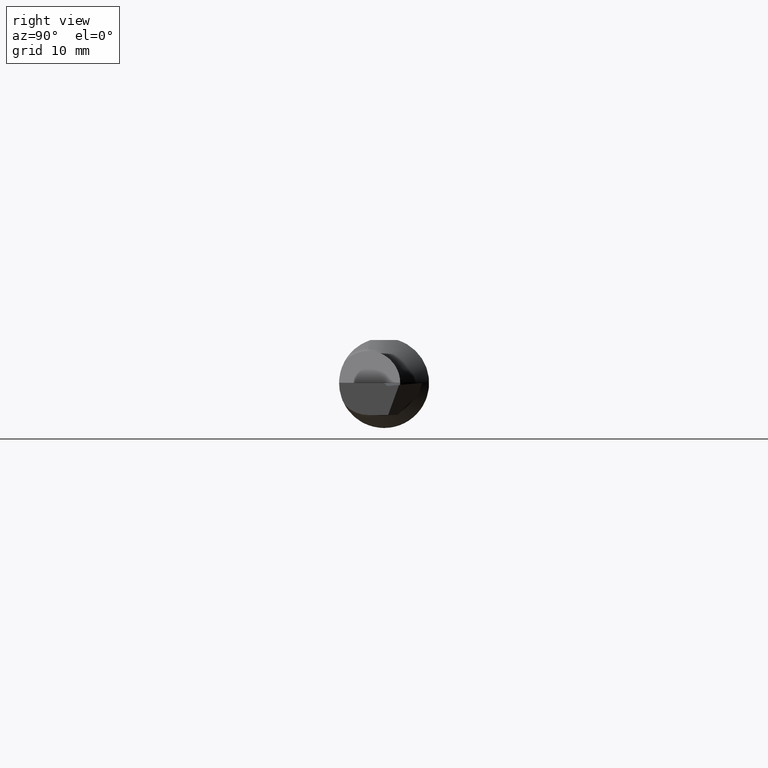
[diagram: clean part render]
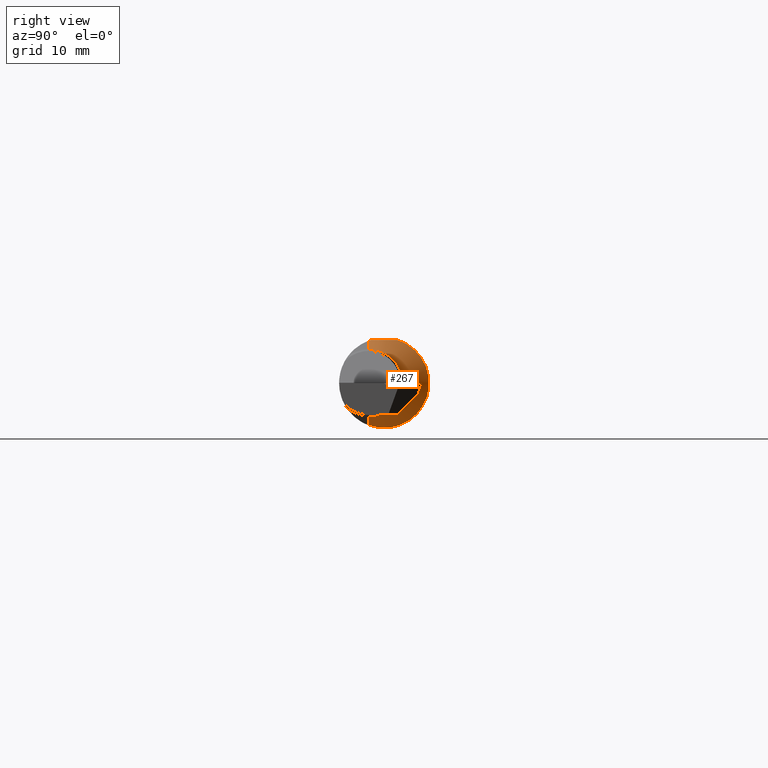
[diagram: same view with one face highlighted and labeled with its STEP entity id]
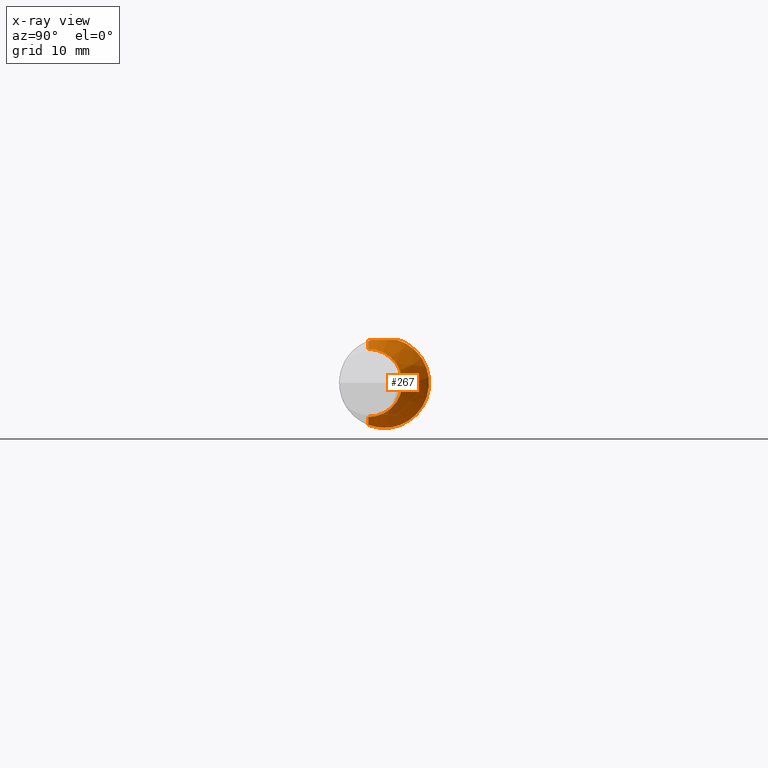
[diagram: x-ray of the same camera — body ghosted, the highlighted face saturated]
A machine part, right view. The second image highlights one B-rep face of the part: STEP entity #267.
The next image is the same camera in x-ray: the body ghosted, the highlighted face saturated — about 19% of this face is hidden behind the body in this view.
In plain terms, the highlighted conical surface has half-angle 45 deg.
Its self-contained STEP definition (entity closure, byte-faithful):
#8 = CARTESIAN_POINT ( 'NONE',  ( 1.616635871238674804, -0.04622120725381384521, 0.1490999999999999270 ) ) ;
#30 = CARTESIAN_POINT ( 'NONE',  ( 1.619947954481972374, -0.05509999999999988518, -0.1460520455180277233 ) ) ;
#31 = CARTESIAN_POINT ( 'NONE',  ( 1.616390666311418478, -0.04567079466777382996, -0.1496093336885842007 ) ) ;
#47 = CARTESIAN_POINT ( 'NONE',  ( 1.585731319860130828, 0.04622120725381386602, 0.1490999999999999270 ) ) ;
#54 = ORIENTED_EDGE ( 'NONE', *, *, #310, .T. ) ;
#80 = CARTESIAN_POINT ( 'NONE',  ( 1.611455283410027750, -0.01367641444778827133, 0.1490999999999999548 ) ) ;
#96 = CARTESIAN_POINT ( 'NONE',  ( 1.568136278873995426, 0.1065604417534539161, -0.1145449302933602004 ) ) ;
#111 = CARTESIAN_POINT ( 'NONE',  ( 1.572111493183075526, 0.09241859738491069176, 0.1262303666906479938 ) ) ;
#115 = CARTESIAN_POINT ( 'NONE',  ( 1.554825678371061004, 0.1560001080571326859, -0.01202898505658659724 ) ) ;
#153 = CARTESIAN_POINT ( 'NONE',  ( 1.593705498961929479, 0.03203370612900889591, 0.1490999999999999270 ) ) ;
#156 = CIRCLE ( 'NONE', #773, 0.1183223304703363982 ) ;
#159 = EDGE_CURVE ( 'NONE', #442, #481, #569, .T. ) ;
#167 = CARTESIAN_POINT ( 'NONE',  ( 1.609095431277676846, -0.005703213165482891658, 0.1490999999999999548 ) ) ;
#169 = CARTESIAN_POINT ( 'NONE',  ( 1.617743472878949706, -0.04922367465879138454, 0.1481692309309302347 ) ) ;
#172 = CARTESIAN_POINT ( 'NONE',  ( 1.575205725379794863, 0.08160962841902984211, -0.1334729144958974878 ) ) ;
#179 = CARTESIAN_POINT ( 'NONE',  ( 1.585731319860130828, 0.04622120725381386602, 0.1490999999999999270 ) ) ;
#183 = CARTESIAN_POINT ( 'NONE',  ( 1.554706639062241935, 0.1564576890087830963, -0.001432090562047943355 ) ) ;
#191 = EDGE_CURVE ( 'NONE', #1047, #624, #1037, .T. ) ;
#193 = CARTESIAN_POINT ( 'NONE',  ( 1.557949842719563716, 0.1441017141000177360, 0.06095261037131192994 ) ) ;
#220 = EDGE_CURVE ( 'NONE', #1030, #1047, #156, .T. ) ;
#224 = DIRECTION ( 'NONE',  ( 0.000000000000000000, 0.000000000000000000, 1.000000000000000000 ) ) ;
#226 = ORIENTED_EDGE ( 'NONE', *, *, #376, .F. ) ;
#230 = CARTESIAN_POINT ( 'NONE',  ( 1.585731319860130828, 0.04622120725381386602, 0.1490999999999999270 ) ) ;
#251 = CARTESIAN_POINT ( 'NONE',  ( 1.582717130590346910, 0.05608262143449923437, 0.1460429478963033156 ) ) ;
#257 = CARTESIAN_POINT ( 'NONE',  ( 1.556943772126054171, 0.1479197732258280551, 0.05098120130938367522 ) ) ;
#262 = CARTESIAN_POINT ( 'NONE',  ( 1.595770450437745458, 0.01419006742947588780, -0.1557821214568156365 ) ) ;
#264 = CARTESIAN_POINT ( 'NONE',  ( 1.647677669529663769, -0.05509999999999980885, -0.1183223304703363843 ) ) ;
#266 = FACE_OUTER_BOUND ( 'NONE', #972, .T. ) ;
#267 = ADVANCED_FACE ( 'NONE', ( #266 ), #703, .T. ) ;
#271 = DIRECTION ( 'NONE',  ( 0.000000000000000000, 0.000000000000000000, 1.000000000000000000 ) ) ;
#310 = EDGE_CURVE ( 'NONE', #624, #442, #795, .T. ) ;
#318 = DIRECTION ( 'NONE',  ( -0.7071067811865516806, 8.659560562354883554E-17, -0.7071067811865434649 ) ) ;
#326 = CARTESIAN_POINT ( 'NONE',  ( 1.454999999999998073, -0.05509999999999979498, -0.3109999999999998876 ) ) ;
#334 = CARTESIAN_POINT ( 'NONE',  ( 1.619947954481972374, -0.05510000000000016274, 0.1460520455180288335 ) ) ;
#347 = CARTESIAN_POINT ( 'NONE',  ( 1.556326481736836298, 0.1502618000434304546, -0.04359105745430103679 ) ) ;
#348 = ORIENTED_EDGE ( 'NONE', *, *, #159, .T. ) ;
#351 = CARTESIAN_POINT ( 'NONE',  ( 1.555491321236809110, 0.1534496953831912813, 0.03053740632296889773 ) ) ;
#376 = EDGE_CURVE ( 'NONE', #1030, #729, #609, .T. ) ;
#393 = B_SPLINE_CURVE_WITH_KNOTS ( 'NONE', 3,
 ( #8, #169, #492, #894 ),
 .UNSPECIFIED., .F., .F.,
 ( 4, 4 ),
 ( 7.061912593305936376E-07, 0.0002510725968033642396 ),
 .UNSPECIFIED. ) ;
#416 = ORIENTED_EDGE ( 'NONE', *, *, #993, .T. ) ;
#419 = CARTESIAN_POINT ( 'NONE',  ( 1.558238439965467848, 0.1430193460246382553, -0.06343701998802304953 ) ) ;
#442 = VERTEX_POINT ( 'NONE', #47 ) ;
#456 = CARTESIAN_POINT ( 'NONE',  ( 1.616635871238674804, -0.04622120725381384521, 0.1490999999999999270 ) ) ;
#470 = CARTESIAN_POINT ( 'NONE',  ( 1.616149622418284082, -0.03804125154417743043, 0.1490999999999999548 ) ) ;
#481 = VERTEX_POINT ( 'NONE', #456 ) ;
#492 = CARTESIAN_POINT ( 'NONE',  ( 1.618847452044276380, -0.05218292863660528580, 0.1471525479557233840 ) ) ;
#498 = CARTESIAN_POINT ( 'NONE',  ( 1.586370617195300259, 0.04404636233410028773, -0.1501015177063665662 ) ) ;
#508 = CARTESIAN_POINT ( 'NONE',  ( 1.562035635856389382, 0.1288120369603220905, 0.08879568090486580911 ) ) ;
#514 = CARTESIAN_POINT ( 'NONE',  ( 1.555631178330442621, 0.1529188650008318218, -0.03311421027574134451 ) ) ;
#528 = VECTOR ( 'NONE', #693, 39.37007874015748143 ) ;
#540 = ORIENTED_EDGE ( 'NONE', *, *, #220, .T. ) ;
#546 = AXIS2_PLACEMENT_3D ( 'NONE', #599, #766, #271 ) ;
#561 = ORIENTED_EDGE ( 'NONE', *, *, #191, .T. ) ;
#562 = CARTESIAN_POINT ( 'NONE',  ( 1.647677669529663769, -0.05509999999999982967, 0.1183223304703363843 ) ) ;
#569 = B_SPLINE_CURVE_WITH_KNOTS ( 'NONE', 3,
 ( #230, #153, #975, #167, #80, #643, #470, #1046 ),
 .UNSPECIFIED., .F., .F.,
 ( 4, 2, 2, 4 ),
 ( 0.004170257919704614680, 0.005419282688077418052, 0.006043795072263819304, 0.006668307456450221424 ),
 .UNSPECIFIED. ) ;
#585 = CARTESIAN_POINT ( 'NONE',  ( 1.567637727932545966, 0.1083427162965807378, 0.1128590202107403323 ) ) ;
#590 = CARTESIAN_POINT ( 'NONE',  ( 1.592562882557630122, 0.02420714763283973031, -0.1545463090989345756 ) ) ;
#599 = CARTESIAN_POINT ( 'NONE',  ( 1.454999999999998073, -0.05509999999999982967, 0.000000000000000000 ) ) ;
#609 = LINE ( 'NONE', #702, #528 ) ;
#624 = VERTEX_POINT ( 'NONE', #30 ) ;
#643 = CARTESIAN_POINT ( 'NONE',  ( 1.614992327536548755, -0.02989759620680064456, 0.1490999999999999270 ) ) ;
#661 = CARTESIAN_POINT ( 'NONE',  ( 1.612876243189713676, -0.03601116808314823448, -0.1522199949055717816 ) ) ;
#679 = CARTESIAN_POINT ( 'NONE',  ( 1.605920490905884179, -0.01624198176629366996, -0.1555761199672636985 ) ) ;
#693 = DIRECTION ( 'NONE',  ( -0.7071067811865516806, 0.000000000000000000, 0.7071067811865434649 ) ) ;
#702 = CARTESIAN_POINT ( 'NONE',  ( 1.454999999999998073, -0.05509999999999982967, 0.3109999999999998876 ) ) ;
#703 = CONICAL_SURFACE ( 'NONE', #546, 0.3109999999999998876, 0.7853981633974425058 ) ;
#722 = VECTOR ( 'NONE', #318, 39.37007874015748143 ) ;
#729 = VERTEX_POINT ( 'NONE', #334 ) ;
#756 = CARTESIAN_POINT ( 'NONE',  ( 1.564201075398399698, 0.1208322551158216157, -0.09937421660685935576 ) ) ;
#761 = CARTESIAN_POINT ( 'NONE',  ( 1.574548691111765208, 0.08387758383247824467, 0.1320588108186686593 ) ) ;
#766 = DIRECTION ( 'NONE',  ( -1.000000000000000000, -0.000000000000000000, -0.000000000000000000 ) ) ;
#769 = CARTESIAN_POINT ( 'NONE',  ( 1.577799391749286295, 0.07267242641550474003, -0.1385313344675339897 ) ) ;
#773 = AXIS2_PLACEMENT_3D ( 'NONE', #1042, #970, #224 ) ;
#795 = B_SPLINE_CURVE_WITH_KNOTS ( 'NONE', 3,
 ( #923, #31, #661, #679, #830, #262, #590, #498, #981, #769, #172, #906, #96, #756, #846, #998, #419, #347, #514, #115, #183, #929, #351, #257, #193, #918, #508, #1001, #585, #111, #761, #913, #251, #179 ),
 .UNSPECIFIED., .F., .F.,
 ( 4, 2, 2, 2, 2, 2, 2, 2, 2, 2, 2, 2, 2, 2, 2, 2, 4 ),
 ( 0.002933762473820766825, 0.003742031587728698004, 0.004550300701636629183, 0.005358569815544559495, 0.006166838929452490674, 0.006975108043360421853, 0.007783377157268352164, 0.008591646271176284211, 0.009399915385084216257, 0.01020818449899214657, 0.01101645361290007862, 0.01182472272680800893, 0.01263299184071593924, 0.01344126095462387128, 0.01424953006853180160, 0.01505779918243973191, 0.01586606829634766222 ),
 .UNSPECIFIED. ) ;
#830 = CARTESIAN_POINT ( 'NONE',  ( 1.602444014235175018, -0.006023535698148741943, -0.1563110501433992161 ) ) ;
#846 = CARTESIAN_POINT ( 'NONE',  ( 1.562466943666290575, 0.1272252589142018053, -0.09107358582682752168 ) ) ;
#894 = CARTESIAN_POINT ( 'NONE',  ( 1.619947954481972374, -0.05510000000000016274, 0.1460520455180288335 ) ) ;
#906 = CARTESIAN_POINT ( 'NONE',  ( 1.570366644445166271, 0.09857836324474329726, -0.1214802726977048108 ) ) ;
#913 = CARTESIAN_POINT ( 'NONE',  ( 1.579868065766410812, 0.06565156991703986755, 0.1420029927566435202 ) ) ;
#918 = CARTESIAN_POINT ( 'NONE',  ( 1.560510350944155133, 0.1344930745780571479, 0.07995084494976506528 ) ) ;
#923 = CARTESIAN_POINT ( 'NONE',  ( 1.619947954481972374, -0.05509999999999988518, -0.1460520455180277233 ) ) ;
#929 = CARTESIAN_POINT ( 'NONE',  ( 1.555035562186708686, 0.1551973409643579438, 0.01987069930676313434 ) ) ;
#970 = DIRECTION ( 'NONE',  ( -1.000000000000000000, -0.000000000000000000, -0.000000000000000000 ) ) ;
#972 = EDGE_LOOP ( 'NONE', ( #540, #561, #54, #348, #416, #226 ) ) ;
#975 = CARTESIAN_POINT ( 'NONE',  ( 1.600825235768599697, 0.01741984689341644077, 0.1490999999999998993 ) ) ;
#981 = CARTESIAN_POINT ( 'NONE',  ( 1.583366277754984619, 0.05393928263266115075, -0.1468426572203956892 ) ) ;
#993 = EDGE_CURVE ( 'NONE', #481, #729, #393, .T. ) ;
#998 = CARTESIAN_POINT ( 'NONE',  ( 1.559459294620472170, 0.1384172549045073752, -0.07294743371663479914 ) ) ;
#1001 = CARTESIAN_POINT ( 'NONE',  ( 1.565588306671178653, 0.1157756030439725109, 0.1052293854065043804 ) ) ;
#1030 = VERTEX_POINT ( 'NONE', #562 ) ;
#1037 = LINE ( 'NONE', #326, #722 ) ;
#1042 = CARTESIAN_POINT ( 'NONE',  ( 1.647677669529663769, -0.05509999999999982967, 0.000000000000000000 ) ) ;
#1046 = CARTESIAN_POINT ( 'NONE',  ( 1.616635871238674804, -0.04622120725381384521, 0.1490999999999999270 ) ) ;
#1047 = VERTEX_POINT ( 'NONE', #264 ) ;